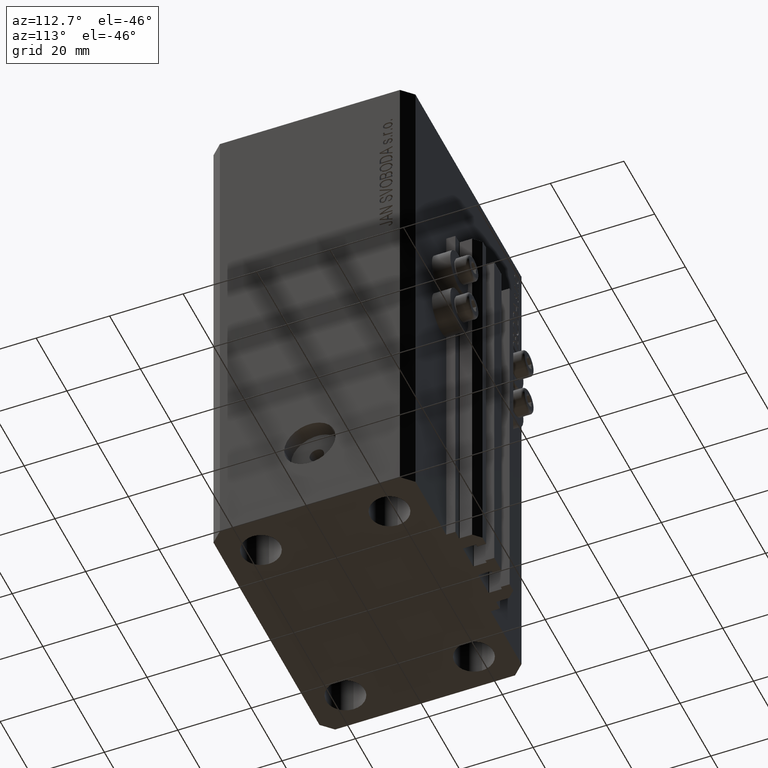
[diagram: clean part render]
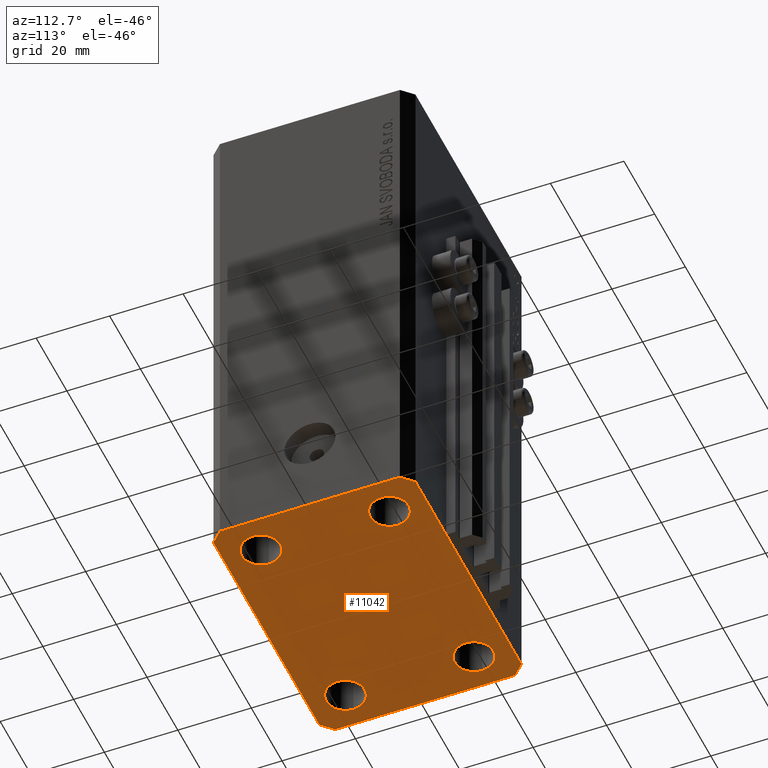
[diagram: same view with one face highlighted and labeled with its STEP entity id]
A machine part, auxiliary view. The second image highlights one B-rep face of the part: STEP entity #11042.
In plain terms, the highlighted planar face has unit normal (0, 0, 1).
Its self-contained STEP definition (entity closure, byte-faithful):
#468 = CARTESIAN_POINT ( 'NONE',  ( -37.49999999999999289, 24.50000000000000000, -140.0000000000000000 ) ) ;
#872 = DIRECTION ( 'NONE',  ( -1.000000000000000000, 0.000000000000000000, 0.000000000000000000 ) ) ;
#1094 = CIRCLE ( 'NONE', #46057, 5.250000000000000888 ) ;
#1651 = VERTEX_POINT ( 'NONE', #31614 ) ;
#2063 = LINE ( 'NONE', #42626, #27076 ) ;
#2168 = CARTESIAN_POINT ( 'NONE',  ( -22.25000000000000000, 17.49999999999999645, -140.0000000000000000 ) ) ;
#2211 = DIRECTION ( 'NONE',  ( 1.076236605503979380E-14, 1.000000000000000000, 0.000000000000000000 ) ) ;
#2750 = CARTESIAN_POINT ( 'NONE',  ( -34.49999999999998579, -27.49999999999999645, -140.0000000000000000 ) ) ;
#2806 = ORIENTED_EDGE ( 'NONE', *, *, #7276, .F. ) ;
#2974 = EDGE_LOOP ( 'NONE', ( #23879, #8689, #3589, #37892, #22614, #17730, #15647, #2806 ) ) ;
#3406 = DIRECTION ( 'NONE',  ( 0.7071067811865483499, -0.7071067811865466846, 0.000000000000000000 ) ) ;
#3579 = VERTEX_POINT ( 'NONE', #42611 ) ;
#3589 = ORIENTED_EDGE ( 'NONE', *, *, #25149, .F. ) ;
#4021 = CIRCLE ( 'NONE', #10867, 5.250000000000000888 ) ;
#4278 = DIRECTION ( 'NONE',  ( 1.000000000000000000, 0.000000000000000000, 0.000000000000000000 ) ) ;
#5026 = DIRECTION ( 'NONE',  ( 1.000000000000000000, 0.000000000000000000, 0.000000000000000000 ) ) ;
#5193 = AXIS2_PLACEMENT_3D ( 'NONE', #31838, #35897, #32544 ) ;
#6765 = CARTESIAN_POINT ( 'NONE',  ( 34.49999999999999289, -27.49999999999999645, -140.0000000000000000 ) ) ;
#6772 = DIRECTION ( 'NONE',  ( -0.7071067811865471286, -0.7071067811865479058, 0.000000000000000000 ) ) ;
#7026 = AXIS2_PLACEMENT_3D ( 'NONE', #8098, #40100, #4278 ) ;
#7064 = EDGE_LOOP ( 'NONE', ( #23932, #14751 ) ) ;
#7225 = CARTESIAN_POINT ( 'NONE',  ( -37.49999999999999289, -24.50000000000000000, -140.0000000000000000 ) ) ;
#7276 = EDGE_CURVE ( 'NONE', #7877, #14630, #46872, .T. ) ;
#7576 = VERTEX_POINT ( 'NONE', #46578 ) ;
#7877 = VERTEX_POINT ( 'NONE', #25645 ) ;
#8098 = CARTESIAN_POINT ( 'NONE',  ( 27.50000000000000000, 17.49999999999999289, -140.0000000000000000 ) ) ;
#8218 = CIRCLE ( 'NONE', #5193, 5.250000000000000888 ) ;
#8689 = ORIENTED_EDGE ( 'NONE', *, *, #46089, .F. ) ;
#8718 = CARTESIAN_POINT ( 'NONE',  ( -27.49999999999999289, -17.50000000000000000, -140.0000000000000000 ) ) ;
#8903 = AXIS2_PLACEMENT_3D ( 'NONE', #28356, #38612, #35516 ) ;
#8980 = DIRECTION ( 'NONE',  ( -0.000000000000000000, -0.000000000000000000, -1.000000000000000000 ) ) ;
#9098 = EDGE_CURVE ( 'NONE', #21993, #13267, #27306, .T. ) ;
#9151 = EDGE_LOOP ( 'NONE', ( #38578, #35010 ) ) ;
#9673 = CARTESIAN_POINT ( 'NONE',  ( 27.49999999999999289, -17.50000000000000000, -140.0000000000000000 ) ) ;
#9829 = EDGE_CURVE ( 'NONE', #14630, #7576, #2063, .T. ) ;
#9837 = EDGE_CURVE ( 'NONE', #35586, #10868, #28621, .T. ) ;
#9846 = LINE ( 'NONE', #7225, #28765 ) ;
#9867 = CARTESIAN_POINT ( 'NONE',  ( -34.49999999999999289, 27.50000000000000000, -140.0000000000000000 ) ) ;
#10239 = VECTOR ( 'NONE', #44955, 1000.000000000000114 ) ;
#10393 = VERTEX_POINT ( 'NONE', #6765 ) ;
#10868 = VERTEX_POINT ( 'NONE', #11197 ) ;
#10867 = AXIS2_PLACEMENT_3D ( 'NONE', #29002, #36390, #29241 ) ;
#11042 = ADVANCED_FACE ( 'NONE', ( #31936, #30999, #16657, #46254, #13781 ), #45785, .F. ) ;
#11197 = CARTESIAN_POINT ( 'NONE',  ( -32.75000000000000000, 17.49999999999999645, -140.0000000000000000 ) ) ;
#12174 = CARTESIAN_POINT ( 'NONE',  ( -34.49999999999998579, -27.49999999999999645, -140.0000000000000000 ) ) ;
#12341 = VERTEX_POINT ( 'NONE', #2750 ) ;
#12530 = DIRECTION ( 'NONE',  ( -0.000000000000000000, -0.000000000000000000, -1.000000000000000000 ) ) ;
#12566 = CARTESIAN_POINT ( 'NONE',  ( -27.50000000000000000, 17.49999999999999645, -140.0000000000000000 ) ) ;
#13267 = VERTEX_POINT ( 'NONE', #17805 ) ;
#13377 = ORIENTED_EDGE ( 'NONE', *, *, #18090, .F. ) ;
#13496 = DIRECTION ( 'NONE',  ( -0.000000000000000000, -0.000000000000000000, -1.000000000000000000 ) ) ;
#13781 = FACE_OUTER_BOUND ( 'NONE', #2974, .T. ) ;
#14630 = VERTEX_POINT ( 'NONE', #468 ) ;
#14715 = EDGE_CURVE ( 'NONE', #1651, #38454, #23805, .T. ) ;
#14751 = ORIENTED_EDGE ( 'NONE', *, *, #14715, .F. ) ;
#15294 = EDGE_CURVE ( 'NONE', #21724, #47138, #4021, .T. ) ;
#15647 = ORIENTED_EDGE ( 'NONE', *, *, #9829, .F. ) ;
#15904 = CARTESIAN_POINT ( 'NONE',  ( -27.50000000000000000, 17.49999999999999645, -140.0000000000000000 ) ) ;
#16304 = LINE ( 'NONE', #38720, #31259 ) ;
#16657 = FACE_BOUND ( 'NONE', #7064, .T. ) ;
#17130 = VERTEX_POINT ( 'NONE', #42790 ) ;
#17165 = EDGE_CURVE ( 'NONE', #7576, #12341, #9846, .T. ) ;
#17730 = ORIENTED_EDGE ( 'NONE', *, *, #17165, .F. ) ;
#17805 = CARTESIAN_POINT ( 'NONE',  ( 22.24999999999999289, -17.50000000000000000, -140.0000000000000000 ) ) ;
#18090 = EDGE_CURVE ( 'NONE', #13267, #21993, #30345, .T. ) ;
#18750 = EDGE_CURVE ( 'NONE', #38454, #1651, #8218, .T. ) ;
#18956 = CARTESIAN_POINT ( 'NONE',  ( -32.74999999999999289, -17.50000000000000000, -140.0000000000000000 ) ) ;
#20963 = AXIS2_PLACEMENT_3D ( 'NONE', #12566, #13496, #45980 ) ;
#21724 = VERTEX_POINT ( 'NONE', #18956 ) ;
#21842 = CARTESIAN_POINT ( 'NONE',  ( 37.50000000000051870, 24.49999999999995381, -140.0000000000000000 ) ) ;
#21868 = AXIS2_PLACEMENT_3D ( 'NONE', #8718, #12530, #41667 ) ;
#21993 = VERTEX_POINT ( 'NONE', #34921 ) ;
#22058 = LINE ( 'NONE', #25218, #24908 ) ;
#22614 = ORIENTED_EDGE ( 'NONE', *, *, #33908, .F. ) ;
#23805 = CIRCLE ( 'NONE', #7026, 5.250000000000000888 ) ;
#23879 = ORIENTED_EDGE ( 'NONE', *, *, #47057, .F. ) ;
#23932 = ORIENTED_EDGE ( 'NONE', *, *, #18750, .F. ) ;
#24231 = DIRECTION ( 'NONE',  ( 1.000000000000000000, 0.000000000000000000, 0.000000000000000000 ) ) ;
#24908 = VECTOR ( 'NONE', #46948, 1000.000000000000114 ) ;
#25149 = EDGE_CURVE ( 'NONE', #3579, #32299, #16304, .T. ) ;
#25218 = CARTESIAN_POINT ( 'NONE',  ( 37.50000000000051870, 24.49999999999995381, -140.0000000000000000 ) ) ;
#25645 = CARTESIAN_POINT ( 'NONE',  ( -34.49999999999999289, 27.50000000000000000, -140.0000000000000000 ) ) ;
#26412 = CARTESIAN_POINT ( 'NONE',  ( 34.50000000000056843, 27.50000000000000000, -140.0000000000000000 ) ) ;
#26856 = VECTOR ( 'NONE', #5026, 1000.000000000000000 ) ;
#27051 = LINE ( 'NONE', #37563, #10239 ) ;
#27076 = VECTOR ( 'NONE', #28071, 1000.000000000000000 ) ;
#27306 = CIRCLE ( 'NONE', #31905, 5.250000000000000888 ) ;
#27447 = LINE ( 'NONE', #12174, #26856 ) ;
#27974 = CIRCLE ( 'NONE', #21868, 5.250000000000000888 ) ;
#28071 = DIRECTION ( 'NONE',  ( 0.000000000000000000, -1.000000000000000000, 0.000000000000000000 ) ) ;
#28157 = CARTESIAN_POINT ( 'NONE',  ( 32.75000000000000000, 17.49999999999999289, -140.0000000000000000 ) ) ;
#28356 = CARTESIAN_POINT ( 'NONE',  ( 0.000000000000000000, 0.000000000000000000, -140.0000000000000000 ) ) ;
#28621 = CIRCLE ( 'NONE', #20963, 5.250000000000000888 ) ;
#28765 = VECTOR ( 'NONE', #3406, 1000.000000000000000 ) ;
#29002 = CARTESIAN_POINT ( 'NONE',  ( -27.49999999999999289, -17.50000000000000000, -140.0000000000000000 ) ) ;
#29241 = DIRECTION ( 'NONE',  ( 1.000000000000000000, 0.000000000000000000, 0.000000000000000000 ) ) ;
#29478 = EDGE_LOOP ( 'NONE', ( #36354, #30076 ) ) ;
#30076 = ORIENTED_EDGE ( 'NONE', *, *, #15294, .F. ) ;
#30345 = CIRCLE ( 'NONE', #31081, 5.250000000000000888 ) ;
#30940 = DIRECTION ( 'NONE',  ( -0.000000000000000000, -0.000000000000000000, -1.000000000000000000 ) ) ;
#30999 = FACE_BOUND ( 'NONE', #34942, .T. ) ;
#31081 = AXIS2_PLACEMENT_3D ( 'NONE', #31302, #44922, #45854 ) ;
#31259 = VECTOR ( 'NONE', #2211, 1000.000000000000000 ) ;
#31302 = CARTESIAN_POINT ( 'NONE',  ( 27.49999999999999289, -17.50000000000000000, -140.0000000000000000 ) ) ;
#31614 = CARTESIAN_POINT ( 'NONE',  ( 22.25000000000000000, 17.49999999999999289, -140.0000000000000000 ) ) ;
#31838 = CARTESIAN_POINT ( 'NONE',  ( 27.50000000000000000, 17.49999999999999289, -140.0000000000000000 ) ) ;
#31905 = AXIS2_PLACEMENT_3D ( 'NONE', #9673, #8980, #24231 ) ;
#31936 = FACE_BOUND ( 'NONE', #29478, .T. ) ;
#32299 = VERTEX_POINT ( 'NONE', #21842 ) ;
#32544 = DIRECTION ( 'NONE',  ( 1.000000000000000000, 0.000000000000000000, 0.000000000000000000 ) ) ;
#33807 = LINE ( 'NONE', #26412, #45967 ) ;
#33908 = EDGE_CURVE ( 'NONE', #12341, #10393, #27447, .T. ) ;
#34921 = CARTESIAN_POINT ( 'NONE',  ( 32.74999999999999289, -17.50000000000000000, -140.0000000000000000 ) ) ;
#34942 = EDGE_LOOP ( 'NONE', ( #43790, #13377 ) ) ;
#34964 = CARTESIAN_POINT ( 'NONE',  ( -22.24999999999999289, -17.50000000000000000, -140.0000000000000000 ) ) ;
#34969 = VECTOR ( 'NONE', #6772, 1000.000000000000000 ) ;
#35010 = ORIENTED_EDGE ( 'NONE', *, *, #39877, .F. ) ;
#35516 = DIRECTION ( 'NONE',  ( 1.000000000000000000, 0.000000000000000000, -0.000000000000000000 ) ) ;
#35586 = VERTEX_POINT ( 'NONE', #2168 ) ;
#35897 = DIRECTION ( 'NONE',  ( -0.000000000000000000, -0.000000000000000000, -1.000000000000000000 ) ) ;
#36354 = ORIENTED_EDGE ( 'NONE', *, *, #46360, .F. ) ;
#36390 = DIRECTION ( 'NONE',  ( -0.000000000000000000, -0.000000000000000000, -1.000000000000000000 ) ) ;
#37563 = CARTESIAN_POINT ( 'NONE',  ( 34.49999999999999289, -27.49999999999999645, -140.0000000000000000 ) ) ;
#37892 = ORIENTED_EDGE ( 'NONE', *, *, #39289, .F. ) ;
#38454 = VERTEX_POINT ( 'NONE', #28157 ) ;
#38578 = ORIENTED_EDGE ( 'NONE', *, *, #9837, .F. ) ;
#38612 = DIRECTION ( 'NONE',  ( 0.000000000000000000, 0.000000000000000000, 1.000000000000000000 ) ) ;
#38720 = CARTESIAN_POINT ( 'NONE',  ( 37.49999999999999289, -24.50000000000000000, -140.0000000000000000 ) ) ;
#39289 = EDGE_CURVE ( 'NONE', #10393, #3579, #27051, .T. ) ;
#39877 = EDGE_CURVE ( 'NONE', #10868, #35586, #1094, .T. ) ;
#40100 = DIRECTION ( 'NONE',  ( -0.000000000000000000, -0.000000000000000000, -1.000000000000000000 ) ) ;
#41667 = DIRECTION ( 'NONE',  ( 1.000000000000000000, 0.000000000000000000, 0.000000000000000000 ) ) ;
#42611 = CARTESIAN_POINT ( 'NONE',  ( 37.49999999999999289, -24.50000000000000000, -140.0000000000000000 ) ) ;
#42626 = CARTESIAN_POINT ( 'NONE',  ( -37.49999999999999289, 24.50000000000000000, -140.0000000000000000 ) ) ;
#42790 = CARTESIAN_POINT ( 'NONE',  ( 34.50000000000056843, 27.50000000000000000, -140.0000000000000000 ) ) ;
#43790 = ORIENTED_EDGE ( 'NONE', *, *, #9098, .F. ) ;
#44922 = DIRECTION ( 'NONE',  ( -0.000000000000000000, -0.000000000000000000, -1.000000000000000000 ) ) ;
#44955 = DIRECTION ( 'NONE',  ( 0.7071067811865474617, 0.7071067811865474617, 0.000000000000000000 ) ) ;
#45720 = DIRECTION ( 'NONE',  ( 1.000000000000000000, 0.000000000000000000, 0.000000000000000000 ) ) ;
#45785 = PLANE ( 'NONE',  #8903 ) ;
#45854 = DIRECTION ( 'NONE',  ( 1.000000000000000000, 0.000000000000000000, 0.000000000000000000 ) ) ;
#45967 = VECTOR ( 'NONE', #872, 1000.000000000000000 ) ;
#45980 = DIRECTION ( 'NONE',  ( 1.000000000000000000, 0.000000000000000000, 0.000000000000000000 ) ) ;
#46057 = AXIS2_PLACEMENT_3D ( 'NONE', #15904, #30940, #45720 ) ;
#46089 = EDGE_CURVE ( 'NONE', #32299, #17130, #22058, .T. ) ;
#46254 = FACE_BOUND ( 'NONE', #9151, .T. ) ;
#46360 = EDGE_CURVE ( 'NONE', #47138, #21724, #27974, .T. ) ;
#46578 = CARTESIAN_POINT ( 'NONE',  ( -37.49999999999999289, -24.50000000000000000, -140.0000000000000000 ) ) ;
#46872 = LINE ( 'NONE', #9867, #34969 ) ;
#46948 = DIRECTION ( 'NONE',  ( -0.7071067811865364705, 0.7071067811865584529, 0.000000000000000000 ) ) ;
#47057 = EDGE_CURVE ( 'NONE', #17130, #7877, #33807, .T. ) ;
#47138 = VERTEX_POINT ( 'NONE', #34964 ) ;